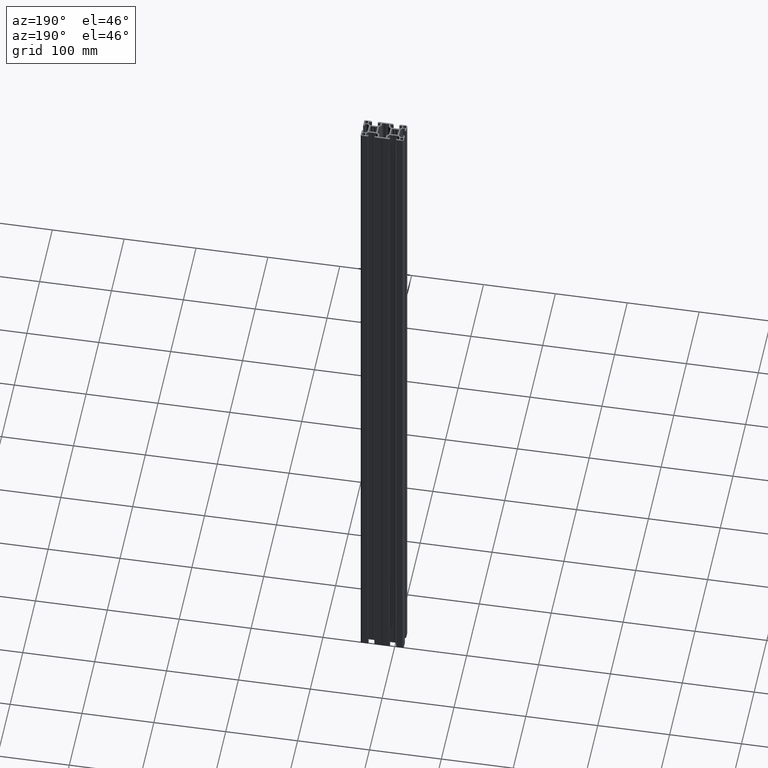
[diagram: clean part render]
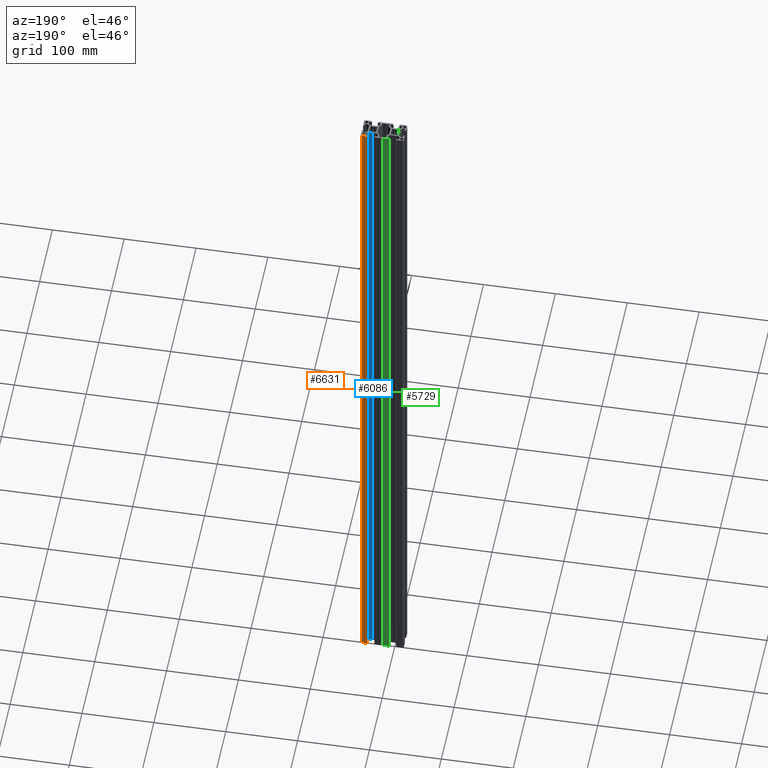
[diagram: same view with three faces highlighted in distinct colors, each labeled with its STEP entity id]
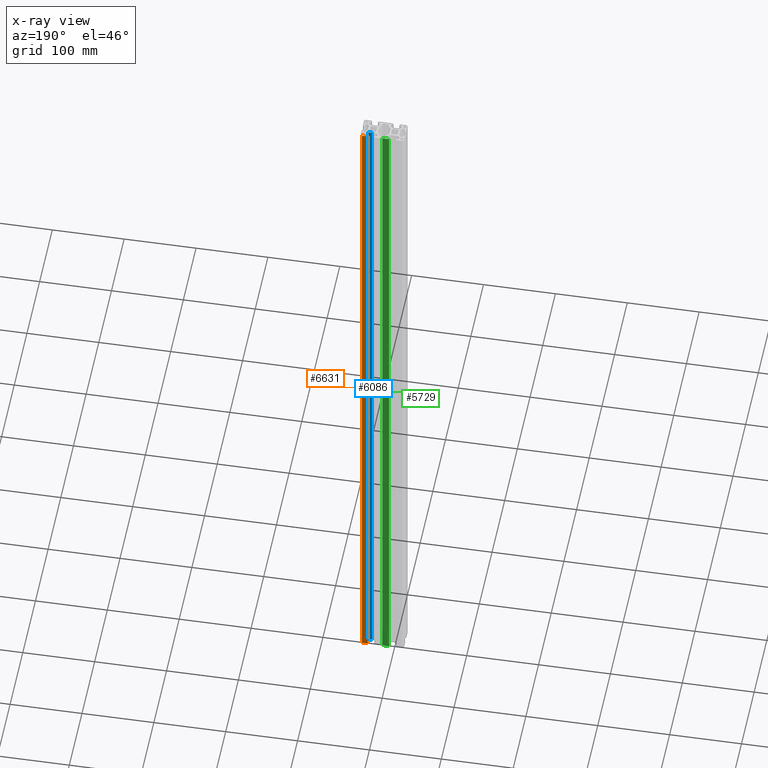
[diagram: x-ray of the same camera — body ghosted, the three highlighted faces saturated]
A machine part, auxiliary view with three faces highlighted in distinct colors.
The next image is the same camera in x-ray (body ghosted, the three faces saturated) — at least one of them is partly hidden behind the body in this view.
Their STEP definitions:

[orange] entity #6631 — the highlighted planar face has unit normal (0, 1, 0).
#89 = VECTOR ( 'NONE', #8034, 1000.000000000000000 ) ;
#162 = CARTESIAN_POINT ( 'NONE',  ( 43.00000000000000711, 15.00000000000000000, 0.0000000000000000000 ) ) ;
#327 = LINE ( 'NONE', #9074, #743 ) ;
#437 = VERTEX_POINT ( 'NONE', #2148 ) ;
#580 = CARTESIAN_POINT ( 'NONE',  ( 43.00000000000000711, 15.00000000000000000, -1000.000000000000000 ) ) ;
#743 = VECTOR ( 'NONE', #8468, 1000.000000000000000 ) ;
#1409 = LINE ( 'NONE', #580, #89 ) ;
#2130 = VECTOR ( 'NONE', #7718, 1000.000000000000000 ) ;
#2148 = CARTESIAN_POINT ( 'NONE',  ( 35.15000000000003411, 15.00000000000000178, -1000.000000000000000 ) ) ;
#2169 = PLANE ( 'NONE',  #6550 ) ;
#2268 = VERTEX_POINT ( 'NONE', #4016 ) ;
#2374 = LINE ( 'NONE', #9701, #3853 ) ;
#2511 = ORIENTED_EDGE ( 'NONE', *, *, #8377, .F. ) ;
#2828 = VERTEX_POINT ( 'NONE', #162 ) ;
#3853 = VECTOR ( 'NONE', #3896, 1000.000000000000000 ) ;
#3896 = DIRECTION ( 'NONE',  ( 1.000000000000000000, -1.591489427501658389E-16, -0.0000000000000000000 ) ) ;
#4016 = CARTESIAN_POINT ( 'NONE',  ( 43.00000000000000711, 15.00000000000000000, -1000.000000000000000 ) ) ;
#4041 = ORIENTED_EDGE ( 'NONE', *, *, #7540, .F. ) ;
#4366 = EDGE_LOOP ( 'NONE', ( #2511, #7883, #7722, #4041 ) ) ;
#4418 = DIRECTION ( 'NONE',  ( 1.000000000000000000, -1.591489427501658389E-16, 0.0000000000000000000 ) ) ;
#4676 = CARTESIAN_POINT ( 'NONE',  ( 35.15000000000003411, 15.00000000000000178, -1000.000000000000000 ) ) ;
#5071 = EDGE_CURVE ( 'NONE', #7675, #437, #7480, .T. ) ;
#5157 = DIRECTION ( 'NONE',  ( 1.591489427501658389E-16, 1.000000000000000000, 0.0000000000000000000 ) ) ;
#6006 = EDGE_CURVE ( 'NONE', #7675, #2828, #327, .T. ) ;
#6007 = CARTESIAN_POINT ( 'NONE',  ( 35.15000000000003411, 15.00000000000000178, 0.0000000000000000000 ) ) ;
#6550 = AXIS2_PLACEMENT_3D ( 'NONE', #9627, #5157, #4418 ) ;
#6631 = ADVANCED_FACE ( 'NONE', ( #6776 ), #2169, .T. ) ;
#6776 = FACE_OUTER_BOUND ( 'NONE', #4366, .T. ) ;
#7480 = LINE ( 'NONE', #4676, #2130 ) ;
#7540 = EDGE_CURVE ( 'NONE', #2268, #2828, #1409, .T. ) ;
#7675 = VERTEX_POINT ( 'NONE', #6007 ) ;
#7718 = DIRECTION ( 'NONE',  ( -0.0000000000000000000, -0.0000000000000000000, -1.000000000000000000 ) ) ;
#7722 = ORIENTED_EDGE ( 'NONE', *, *, #6006, .T. ) ;
#7883 = ORIENTED_EDGE ( 'NONE', *, *, #5071, .F. ) ;
#8034 = DIRECTION ( 'NONE',  ( 0.0000000000000000000, 0.0000000000000000000, 1.000000000000000000 ) ) ;
#8377 = EDGE_CURVE ( 'NONE', #437, #2268, #2374, .T. ) ;
#8468 = DIRECTION ( 'NONE',  ( 1.000000000000000000, -1.591489427501658389E-16, -0.0000000000000000000 ) ) ;
#9074 = CARTESIAN_POINT ( 'NONE',  ( 45.00000000000002132, 15.00000000000000000, 0.0000000000000000000 ) ) ;
#9627 = CARTESIAN_POINT ( 'NONE',  ( 45.00000000000002132, 15.00000000000000000, -1000.000000000000000 ) ) ;
#9701 = CARTESIAN_POINT ( 'NONE',  ( 45.00000000000002132, 15.00000000000000000, -1000.000000000000000 ) ) ;

[blue] entity #6086 — the highlighted planar face has unit normal (0, 1, 0).
#228 = CARTESIAN_POINT ( 'NONE',  ( 35.58578643762692195, 6.999999999999992895, -1000.000000000000000 ) ) ;
#329 = ORIENTED_EDGE ( 'NONE', *, *, #1332, .T. ) ;
#430 = ORIENTED_EDGE ( 'NONE', *, *, #9092, .F. ) ;
#456 = LINE ( 'NONE', #598, #9360 ) ;
#598 = CARTESIAN_POINT ( 'NONE',  ( 30.52569390943303063, 6.999999999999992895, -1000.000000000000000 ) ) ;
#951 = VERTEX_POINT ( 'NONE', #7519 ) ;
#965 = LINE ( 'NONE', #228, #7495 ) ;
#996 = LINE ( 'NONE', #3889, #8086 ) ;
#1332 = EDGE_CURVE ( 'NONE', #2377, #951, #9422, .T. ) ;
#1372 = AXIS2_PLACEMENT_3D ( 'NONE', #6491, #1980, #5023 ) ;
#1632 = DIRECTION ( 'NONE',  ( 0.0000000000000000000, 0.0000000000000000000, 1.000000000000000000 ) ) ;
#1980 = DIRECTION ( 'NONE',  ( 0.0000000000000000000, 1.000000000000000000, 0.0000000000000000000 ) ) ;
#2377 = VERTEX_POINT ( 'NONE', #9466 ) ;
#2630 = ORIENTED_EDGE ( 'NONE', *, *, #5133, .F. ) ;
#2687 = CARTESIAN_POINT ( 'NONE',  ( 35.58578643762692195, 6.999999999999992895, 0.0000000000000000000 ) ) ;
#2741 = DIRECTION ( 'NONE',  ( -0.0000000000000000000, -0.0000000000000000000, -1.000000000000000000 ) ) ;
#3208 = DIRECTION ( 'NONE',  ( 1.000000000000000000, -0.0000000000000000000, -0.0000000000000000000 ) ) ;
#3560 = ORIENTED_EDGE ( 'NONE', *, *, #4229, .F. ) ;
#3889 = CARTESIAN_POINT ( 'NONE',  ( 35.27512626584709921, 6.999999999999992895, 0.0000000000000000000 ) ) ;
#4147 = CARTESIAN_POINT ( 'NONE',  ( 30.52569390943303063, 6.999999999999992895, -1000.000000000000000 ) ) ;
#4229 = EDGE_CURVE ( 'NONE', #7371, #6946, #965, .T. ) ;
#5023 = DIRECTION ( 'NONE',  ( 0.0000000000000000000, 0.0000000000000000000, 1.000000000000000000 ) ) ;
#5133 = EDGE_CURVE ( 'NONE', #6946, #951, #996, .T. ) ;
#5848 = EDGE_LOOP ( 'NONE', ( #329, #2630, #3560, #430 ) ) ;
#6086 = ADVANCED_FACE ( 'NONE', ( #8697 ), #6545, .T. ) ;
#6113 = VECTOR ( 'NONE', #6519, 1000.000000000000000 ) ;
#6491 = CARTESIAN_POINT ( 'NONE',  ( 35.58578643762692195, 6.999999999999992895, -1000.000000000000000 ) ) ;
#6519 = DIRECTION ( 'NONE',  ( 1.000000000000000000, -0.0000000000000000000, -0.0000000000000000000 ) ) ;
#6545 = PLANE ( 'NONE',  #1372 ) ;
#6946 = VERTEX_POINT ( 'NONE', #9374 ) ;
#7371 = VERTEX_POINT ( 'NONE', #4147 ) ;
#7495 = VECTOR ( 'NONE', #3208, 1000.000000000000000 ) ;
#7519 = CARTESIAN_POINT ( 'NONE',  ( 35.27512626584709921, 6.999999999999992895, 0.0000000000000000000 ) ) ;
#8086 = VECTOR ( 'NONE', #1632, 1000.000000000000000 ) ;
#8697 = FACE_OUTER_BOUND ( 'NONE', #5848, .T. ) ;
#9092 = EDGE_CURVE ( 'NONE', #2377, #7371, #456, .T. ) ;
#9360 = VECTOR ( 'NONE', #2741, 1000.000000000000000 ) ;
#9374 = CARTESIAN_POINT ( 'NONE',  ( 35.27512626584709921, 6.999999999999992895, -1000.000000000000000 ) ) ;
#9422 = LINE ( 'NONE', #2687, #6113 ) ;
#9466 = CARTESIAN_POINT ( 'NONE',  ( 30.52569390943303063, 6.999999999999992895, 0.0000000000000000000 ) ) ;

[green] entity #5729 — the highlighted planar face has unit normal (-0, 1, 0).
#189 = VERTEX_POINT ( 'NONE', #1572 ) ;
#208 = EDGE_CURVE ( 'NONE', #1756, #6191, #8243, .T. ) ;
#565 = CARTESIAN_POINT ( 'NONE',  ( 5.150000000000020783, 15.00000000000000000, 0.0000000000000000000 ) ) ;
#790 = DIRECTION ( 'NONE',  ( -1.000000000000000000, -1.591489427501657157E-16, -0.0000000000000000000 ) ) ;
#1257 = CARTESIAN_POINT ( 'NONE',  ( 5.150000000000020783, 15.00000000000000000, 0.0000000000000000000 ) ) ;
#1572 = CARTESIAN_POINT ( 'NONE',  ( 5.150000000000020783, 15.00000000000000000, -1000.000000000000000 ) ) ;
#1756 = VERTEX_POINT ( 'NONE', #2694 ) ;
#2281 = DIRECTION ( 'NONE',  ( 1.000000000000000000, 1.591489427501657157E-16, -0.0000000000000000000 ) ) ;
#2540 = FACE_OUTER_BOUND ( 'NONE', #8652, .T. ) ;
#2592 = PLANE ( 'NONE',  #3385 ) ;
#2694 = CARTESIAN_POINT ( 'NONE',  ( 14.66230473516046295, 15.00000000000000178, 0.0000000000000000000 ) ) ;
#3061 = CARTESIAN_POINT ( 'NONE',  ( 4.100000000000011191, 15.00000000000000000, -1000.000000000000000 ) ) ;
#3157 = VECTOR ( 'NONE', #790, 1000.000000000000000 ) ;
#3175 = CARTESIAN_POINT ( 'NONE',  ( 4.100000000000011191, 15.00000000000000000, 0.0000000000000000000 ) ) ;
#3385 = AXIS2_PLACEMENT_3D ( 'NONE', #8534, #5587, #4108 ) ;
#3874 = DIRECTION ( 'NONE',  ( -0.0000000000000000000, 0.0000000000000000000, -1.000000000000000000 ) ) ;
#4058 = VERTEX_POINT ( 'NONE', #7585 ) ;
#4108 = DIRECTION ( 'NONE',  ( -1.000000000000000000, -1.591489427501657157E-16, 0.0000000000000000000 ) ) ;
#4663 = LINE ( 'NONE', #4707, #5743 ) ;
#4707 = CARTESIAN_POINT ( 'NONE',  ( 14.66230473516046295, 15.00000000000000178, -1000.000000000000000 ) ) ;
#4921 = EDGE_CURVE ( 'NONE', #189, #6191, #4974, .T. ) ;
#4974 = LINE ( 'NONE', #1257, #9678 ) ;
#4981 = ORIENTED_EDGE ( 'NONE', *, *, #5535, .T. ) ;
#5535 = EDGE_CURVE ( 'NONE', #1756, #4058, #4663, .T. ) ;
#5587 = DIRECTION ( 'NONE',  ( -1.591489427501657157E-16, 1.000000000000000000, 0.0000000000000000000 ) ) ;
#5729 = ADVANCED_FACE ( 'NONE', ( #2540 ), #2592, .T. ) ;
#5743 = VECTOR ( 'NONE', #3874, 1000.000000000000000 ) ;
#6103 = LINE ( 'NONE', #3061, #8401 ) ;
#6191 = VERTEX_POINT ( 'NONE', #565 ) ;
#7275 = DIRECTION ( 'NONE',  ( 0.0000000000000000000, -0.0000000000000000000, 1.000000000000000000 ) ) ;
#7585 = CARTESIAN_POINT ( 'NONE',  ( 14.66230473516046295, 15.00000000000000178, -1000.000000000000000 ) ) ;
#8072 = ORIENTED_EDGE ( 'NONE', *, *, #208, .F. ) ;
#8243 = LINE ( 'NONE', #3175, #3157 ) ;
#8401 = VECTOR ( 'NONE', #2281, 1000.000000000000000 ) ;
#8423 = EDGE_CURVE ( 'NONE', #189, #4058, #6103, .T. ) ;
#8534 = CARTESIAN_POINT ( 'NONE',  ( 4.100000000000011191, 15.00000000000000000, -1021.213203435596256 ) ) ;
#8652 = EDGE_LOOP ( 'NONE', ( #8781, #9504, #8072, #4981 ) ) ;
#8781 = ORIENTED_EDGE ( 'NONE', *, *, #8423, .F. ) ;
#9504 = ORIENTED_EDGE ( 'NONE', *, *, #4921, .T. ) ;
#9678 = VECTOR ( 'NONE', #7275, 1000.000000000000000 ) ;